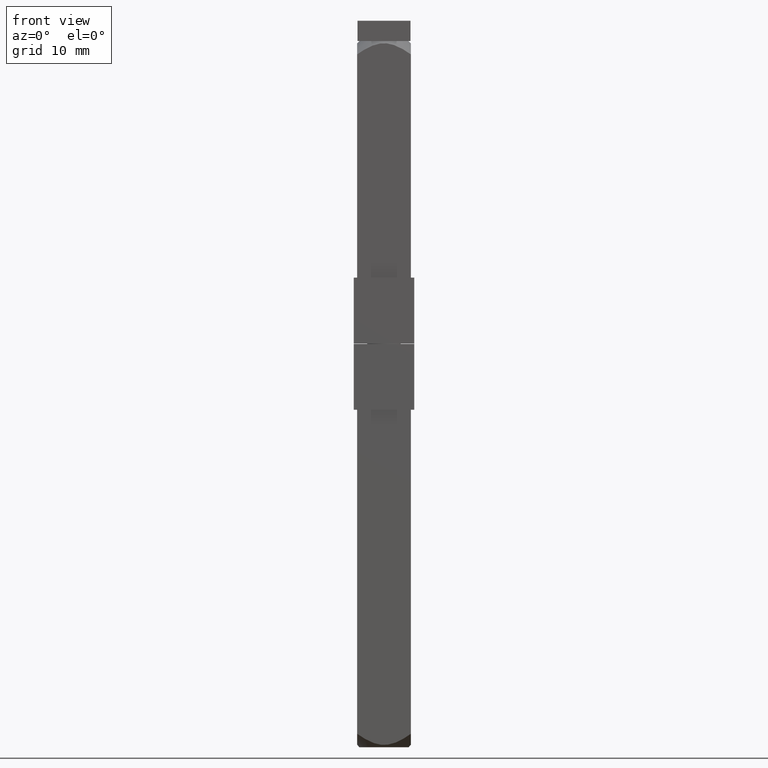
[diagram: clean part render]
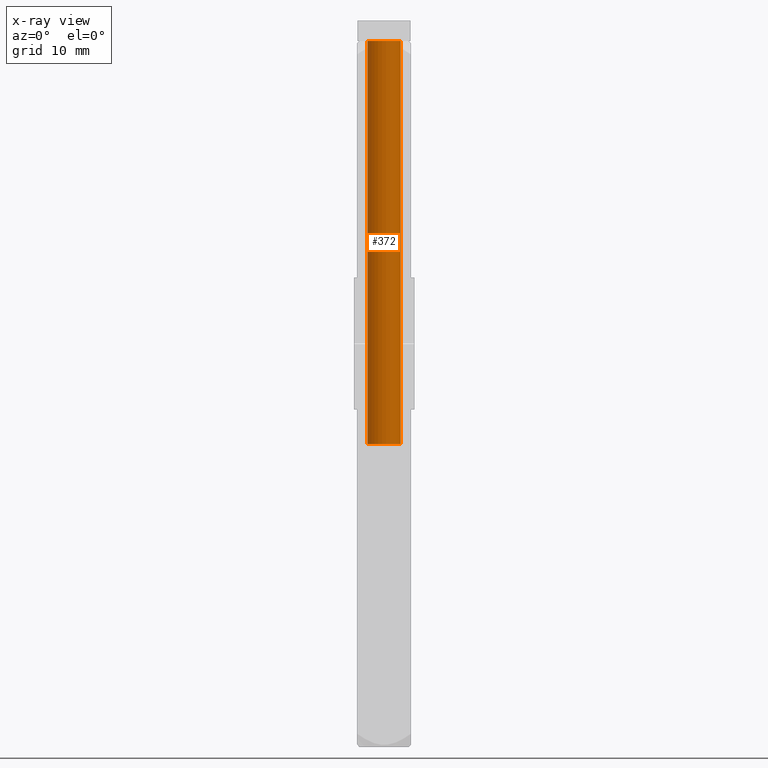
[diagram: x-ray — body ghosted, one internal face saturated and labeled with its STEP entity id]
A machine part, front view, then the same camera in x-ray: the body is ghosted and one INTERNAL B-rep face — a face not visible from any outside direction — is saturated and labeled: STEP entity #372.
In plain terms, the highlighted cylindrical surface (bore or boss wall) has radius 2.5 mm, axis along (0, 0, 1).
Its self-contained STEP definition (entity closure, byte-faithful):
#233 = CARTESIAN_POINT ( 'NONE',  ( 0.0000000000000000000, 0.0000000000000000000, -60.00000000000000000 ) ) ;
#372 = ADVANCED_FACE ( 'NONE', ( #7018, #6756 ), #8785, .T. ) ;
#602 = CIRCLE ( 'NONE', #4180, 2.500000000000000000 ) ;
#1924 = AXIS2_PLACEMENT_3D ( 'NONE', #233, #6993, #9686 ) ;
#2329 = DIRECTION ( 'NONE',  ( -1.000000000000000000, 0.0000000000000000000, 0.0000000000000000000 ) ) ;
#2339 = ORIENTED_EDGE ( 'NONE', *, *, #10952, .F. ) ;
#2621 = VERTEX_POINT ( 'NONE', #3383 ) ;
#2966 = AXIS2_PLACEMENT_3D ( 'NONE', #3560, #6128, #3631 ) ;
#3383 = CARTESIAN_POINT ( 'NONE',  ( 2.500000000000000000, 0.0000000000000000000, 0.0000000000000000000 ) ) ;
#3560 = CARTESIAN_POINT ( 'NONE',  ( 0.0000000000000000000, 0.0000000000000000000, 0.0000000000000000000 ) ) ;
#3631 = DIRECTION ( 'NONE',  ( 1.000000000000000000, 0.0000000000000000000, 0.0000000000000000000 ) ) ;
#4180 = AXIS2_PLACEMENT_3D ( 'NONE', #10913, #4880, #2329 ) ;
#4880 = DIRECTION ( 'NONE',  ( 0.0000000000000000000, 0.0000000000000000000, -1.000000000000000000 ) ) ;
#5338 = CIRCLE ( 'NONE', #2966, 2.500000000000000000 ) ;
#6128 = DIRECTION ( 'NONE',  ( 0.0000000000000000000, -0.0000000000000000000, -1.000000000000000000 ) ) ;
#6756 = FACE_OUTER_BOUND ( 'NONE', #10603, .T. ) ;
#6993 = DIRECTION ( 'NONE',  ( -0.0000000000000000000, -0.0000000000000000000, 1.000000000000000000 ) ) ;
#7018 = FACE_OUTER_BOUND ( 'NONE', #9922, .T. ) ;
#7242 = EDGE_CURVE ( 'NONE', #2621, #2621, #5338, .T. ) ;
#8433 = ORIENTED_EDGE ( 'NONE', *, *, #7242, .T. ) ;
#8680 = VERTEX_POINT ( 'NONE', #10192 ) ;
#8785 = CYLINDRICAL_SURFACE ( 'NONE', #1924, 2.500000000000000000 ) ;
#9686 = DIRECTION ( 'NONE',  ( 1.000000000000000000, 0.0000000000000000000, 0.0000000000000000000 ) ) ;
#9922 = EDGE_LOOP ( 'NONE', ( #2339 ) ) ;
#10192 = CARTESIAN_POINT ( 'NONE',  ( -2.500000000000000000, 0.0000000000000000000, -60.00000000000000000 ) ) ;
#10603 = EDGE_LOOP ( 'NONE', ( #8433 ) ) ;
#10913 = CARTESIAN_POINT ( 'NONE',  ( 0.0000000000000000000, 0.0000000000000000000, -60.00000000000000000 ) ) ;
#10952 = EDGE_CURVE ( 'NONE', #8680, #8680, #602, .T. ) ;